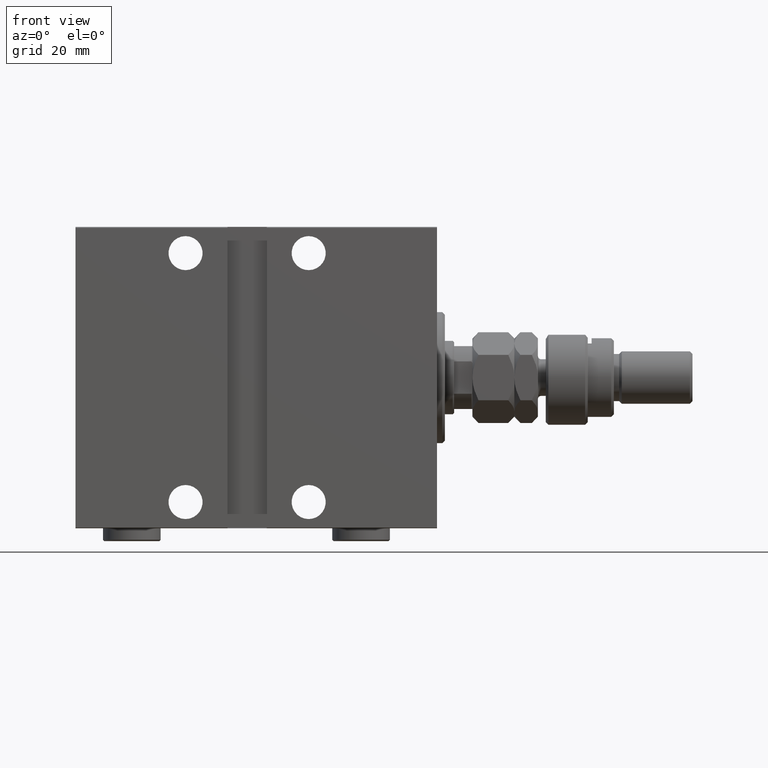
[diagram: clean part render]
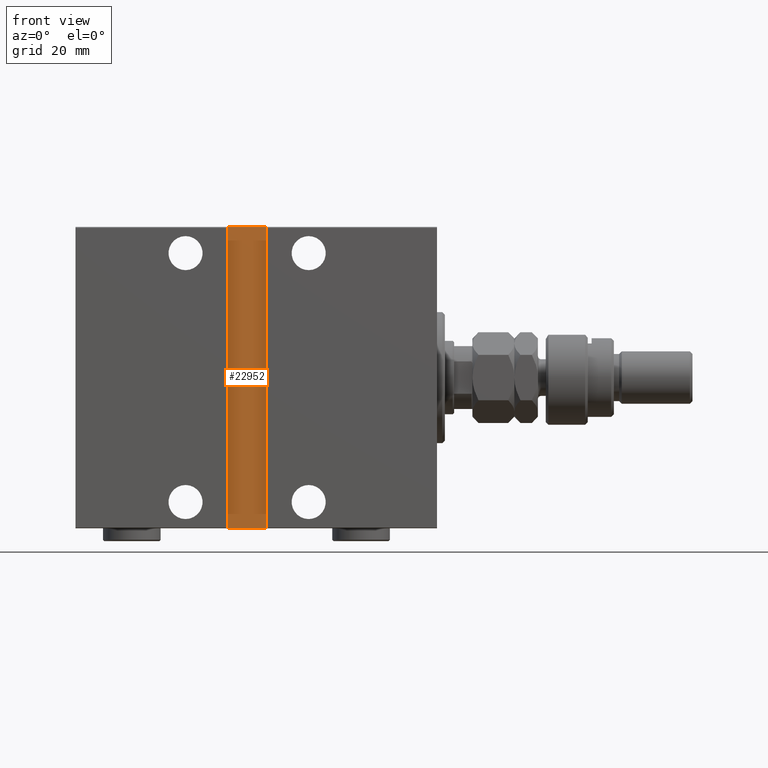
[diagram: same view with one face highlighted and labeled with its STEP entity id]
A machine part, front view. The second image highlights one B-rep face of the part: STEP entity #22952.
In plain terms, the highlighted planar face has unit normal (-0, 1, -0).
Its self-contained STEP definition (entity closure, byte-faithful):
#2466 = VECTOR ( 'NONE', #14602, 1000.000000000000000 ) ;
#3500 = EDGE_LOOP ( 'NONE', ( #26020, #45080, #28186, #8317 ) ) ;
#4092 = LINE ( 'NONE', #33237, #2466 ) ;
#5019 = VERTEX_POINT ( 'NONE', #39238 ) ;
#7177 = CARTESIAN_POINT ( 'NONE',  ( 79.99999999999995737, 40.00000000000000711, 57.50000000000002132 ) ) ;
#7872 = EDGE_CURVE ( 'NONE', #5019, #9315, #12962, .T. ) ;
#8317 = ORIENTED_EDGE ( 'NONE', *, *, #33670, .T. ) ;
#8386 = FACE_OUTER_BOUND ( 'NONE', #3500, .T. ) ;
#9315 = VERTEX_POINT ( 'NONE', #7177 ) ;
#9318 = DIRECTION ( 'NONE',  ( 0.000000000000000000, 1.206764157201255812E-16, -1.000000000000000000 ) ) ;
#9721 = VECTOR ( 'NONE', #38272, 1000.000000000000000 ) ;
#12962 = LINE ( 'NONE', #20374, #9721 ) ;
#14602 = DIRECTION ( 'NONE',  ( 0.000000000000000000, -1.206764157201255812E-16, 1.000000000000000000 ) ) ;
#19463 = EDGE_CURVE ( 'NONE', #22552, #5019, #4092, .T. ) ;
#19505 = CARTESIAN_POINT ( 'NONE',  ( 79.99999999999997158, 40.00000000000002132, -57.50000000000000711 ) ) ;
#20374 = CARTESIAN_POINT ( 'NONE',  ( 79.99999999999995737, 40.00000000000000711, 57.50000000000002132 ) ) ;
#20952 = EDGE_CURVE ( 'NONE', #9315, #29499, #33505, .T. ) ;
#22047 = DIRECTION ( 'NONE',  ( 1.206764157201255812E-16, 1.206764157201255812E-16, -1.000000000000000000 ) ) ;
#22552 = VERTEX_POINT ( 'NONE', #26421 ) ;
#22952 = ADVANCED_FACE ( 'NONE', ( #8386 ), #22967, .F. ) ;
#22967 = PLANE ( 'NONE',  #40651 ) ;
#26020 = ORIENTED_EDGE ( 'NONE', *, *, #19463, .T. ) ;
#26146 = VECTOR ( 'NONE', #22047, 1000.000000000000000 ) ;
#26421 = CARTESIAN_POINT ( 'NONE',  ( 64.99999999999998579, 40.00000000000002132, -57.50000000000010658 ) ) ;
#27940 = DIRECTION ( 'NONE',  ( 5.582405635905037091E-32, -1.000000000000000000, -1.206764157201255812E-16 ) ) ;
#28186 = ORIENTED_EDGE ( 'NONE', *, *, #20952, .T. ) ;
#29499 = VERTEX_POINT ( 'NONE', #19505 ) ;
#31038 = VECTOR ( 'NONE', #43042, 1000.000000000000000 ) ;
#33237 = CARTESIAN_POINT ( 'NONE',  ( 64.99999999999998579, 40.00000000000002132, -57.50000000000010658 ) ) ;
#33505 = LINE ( 'NONE', #40648, #26146 ) ;
#33670 = EDGE_CURVE ( 'NONE', #29499, #22552, #46125, .T. ) ;
#38272 = DIRECTION ( 'NONE',  ( 1.000000000000000000, -0.000000000000000000, 4.625929269271494788E-16 ) ) ;
#38441 = CARTESIAN_POINT ( 'NONE',  ( -2.512082536157267446E-30, 40.00000000000001421, 4.799630170686813290E-15 ) ) ;
#38739 = CARTESIAN_POINT ( 'NONE',  ( 79.99999999999997158, 40.00000000000002132, -57.50000000000010658 ) ) ;
#39238 = CARTESIAN_POINT ( 'NONE',  ( 64.99999999999998579, 40.00000000000000711, 57.50000000000001421 ) ) ;
#40648 = CARTESIAN_POINT ( 'NONE',  ( 79.99999999999997158, 40.00000000000002132, -57.50000000000010658 ) ) ;
#40651 = AXIS2_PLACEMENT_3D ( 'NONE', #38441, #27940, #9318 ) ;
#43042 = DIRECTION ( 'NONE',  ( -1.000000000000000000, 0.000000000000000000, 0.000000000000000000 ) ) ;
#45080 = ORIENTED_EDGE ( 'NONE', *, *, #7872, .T. ) ;
#46125 = LINE ( 'NONE', #38739, #31038 ) ;